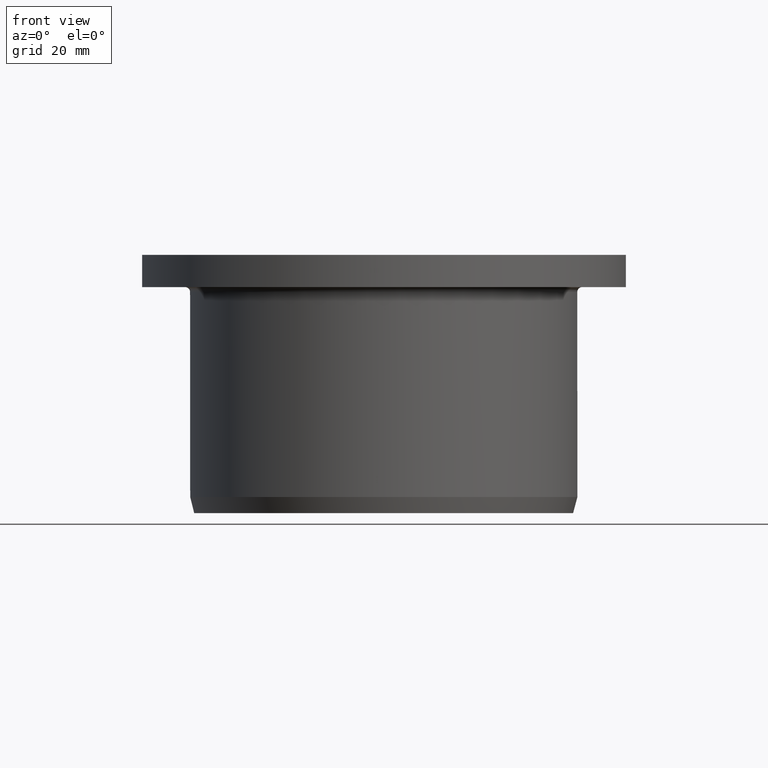
[diagram: clean part render]
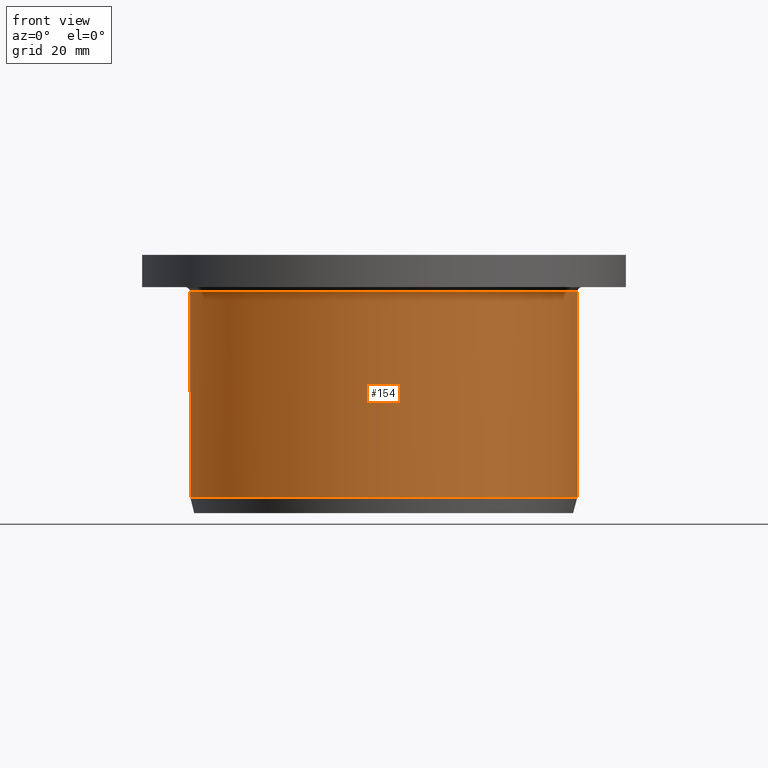
[diagram: same view with one face highlighted and labeled with its STEP entity id]
A machine part, front view. The second image highlights one B-rep face of the part: STEP entity #154.
In plain terms, the highlighted cylindrical surface (bore or boss wall) has radius 60 mm, axis along (0, -0, -1).
Its self-contained STEP definition (entity closure, byte-faithful):
#154=ADVANCED_FACE('',(#167,#168),#169,.T.);
#167=FACE_OUTER_BOUND('',#195,.T.);
#168=FACE_OUTER_BOUND('',#196,.T.);
#169=CYLINDRICAL_SURFACE('',#197,0.06);
#195=EDGE_LOOP('',(#224));
#196=EDGE_LOOP('',(#225));
#197=AXIS2_PLACEMENT_3D('',#226,#227,#228);
#224=ORIENTED_EDGE('',*,*,#266,.T.);
#225=ORIENTED_EDGE('',*,*,#267,.F.);
#226=CARTESIAN_POINT('',(0.0,0.0,3.40872898583923E-020));
#227=DIRECTION('',(0.0,-6.12323399573677E-017,-1.0));
#228=DIRECTION('',(0.0,1.0,-6.12323399573677E-017));
#266=EDGE_CURVE('',#277,#277,#278,.T.);
#267=EDGE_CURVE('',#279,#279,#280,.T.);
#277=VERTEX_POINT('',#295);
#278=CIRCLE('',#296,0.06);
#279=VERTEX_POINT('',#297);
#280=CIRCLE('',#298,0.06);
#295=CARTESIAN_POINT('',(0.0,0.06,0.0685));
#296=AXIS2_PLACEMENT_3D('',#315,#316,#317);
#297=CARTESIAN_POINT('',(0.06,0.0,0.005));
#298=AXIS2_PLACEMENT_3D('',#318,#319,#320);
#315=CARTESIAN_POINT('',(0.0,4.19441528707969E-018,0.0685));
#316=DIRECTION('',(0.0,-6.12323399573677E-017,-1.0));
#317=DIRECTION('',(0.0,1.0,-6.12323399573677E-017));
#318=CARTESIAN_POINT('',(0.0,0.0,0.005));
#319=DIRECTION('',(0.0,-6.12323399573677E-017,-1.0));
#320=DIRECTION('',(0.0,1.0,-6.12323399573677E-017));